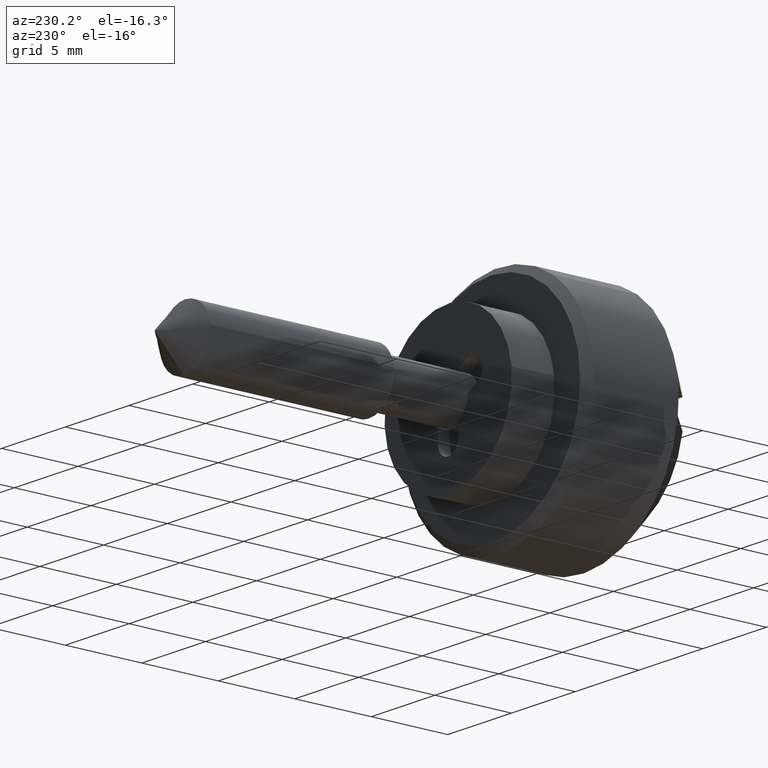
[diagram: clean part render]
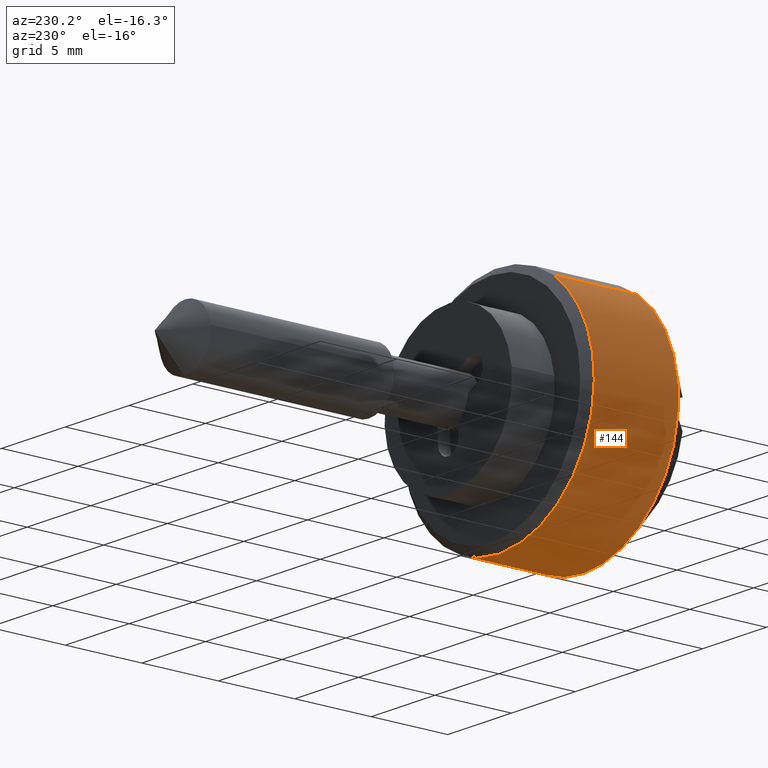
[diagram: same view with one face highlighted and labeled with its STEP entity id]
A machine part, auxiliary view. The second image highlights one B-rep face of the part: STEP entity #144.
In plain terms, the highlighted cylindrical surface (partial cylindrical patch) has radius 7.5 mm, axis along (0, -1, 0).
Its self-contained STEP definition (entity closure, byte-faithful):
#144=ADVANCED_FACE('',(#476),#475,.T.);
#475=CYLINDRICAL_SURFACE('',#727,7.50000000000E+00);
#476=FACE_OUTER_BOUND('',#728,.T.);
#724=CARTESIAN_POINT('',(-9.16239750000E+00,-9.39421562612E-16,-1.42634233970E-16));
#725=DIRECTION('',(-1.00000000000E+00,-8.00379121815E-17,5.57721072830E-17));
#726=DIRECTION('',(-0.00000000000E+00,5.71710610884E-01,8.20455347598E-01));
#727=AXIS2_PLACEMENT_3D('',#724,#725,#726);
#728=EDGE_LOOP('',(#926,#927,#928,#929,#930,#931,#932,#933));
#926=ORIENTED_EDGE('',*,*,#1039,.T.);
#927=ORIENTED_EDGE('',*,*,#1007,.T.);
#928=ORIENTED_EDGE('',*,*,#1036,.T.);
#929=ORIENTED_EDGE('',*,*,#1052,.F.);
#930=ORIENTED_EDGE('',*,*,#1053,.T.);
#931=ORIENTED_EDGE('',*,*,#1054,.T.);
#932=ORIENTED_EDGE('',*,*,#1055,.T.);
#933=ORIENTED_EDGE('',*,*,#1056,.T.);
#1007=EDGE_CURVE('',#1351,#1343,#1352,.T.);
#1036=EDGE_CURVE('',#1343,#1544,#1551,.T.);
#1039=EDGE_CURVE('',#1569,#1351,#1570,.T.);
#1052=EDGE_CURVE('',#1654,#1544,#1655,.T.);
#1053=EDGE_CURVE('',#1654,#1661,#1662,.T.);
#1054=EDGE_CURVE('',#1661,#1668,#1669,.T.);
#1055=EDGE_CURVE('',#1668,#1675,#1676,.T.);
#1056=EDGE_CURVE('',#1675,#1569,#1682,.T.);
#1343=VERTEX_POINT('',#1895);
#1351=VERTEX_POINT('',#1900);
#1352=CIRCLE('',#1904,7.50000000000E+00);
#1544=VERTEX_POINT('',#2034);
#1551=CIRCLE('',#2042,7.50000000000E+00);
#1569=VERTEX_POINT('',#2051);
#1570=CIRCLE('',#2055,7.50000000000E+00);
#1654=VERTEX_POINT('',#2096);
#1655=(BOUNDED_CURVE() B_SPLINE_CURVE(1,(#2097,#2098),.UNSPECIFIED.,.F.,.F.) B_SPLINE_CURVE_WITH_KNOTS((2,2),(8.33333383004E-02,9.16666669188E-01),.UNSPECIFIED.) CURVE() GEOMETRIC_REPRESENTATION_ITEM() RATIONAL_B_SPLINE_CURVE((1.00000000000E+00,1.00000000000E+00)) REPRESENTATION_ITEM('') );
#1661=VERTEX_POINT('',#2099);
#1662=CIRCLE('',#2103,7.50000000001E+00);
#1668=VERTEX_POINT('',#2104);
#1669=CIRCLE('',#2108,7.50000000001E+00);
#1675=VERTEX_POINT('',#2109);
#1676=CIRCLE('',#2113,7.50000000001E+00);
#1682=(BOUNDED_CURVE() B_SPLINE_CURVE(1,(#2114,#2115),.UNSPECIFIED.,.F.,.F.) B_SPLINE_CURVE_WITH_KNOTS((2,2),(8.33333333337E-02,9.16666666667E-01),.UNSPECIFIED.) CURVE() GEOMETRIC_REPRESENTATION_ITEM() RATIONAL_B_SPLINE_CURVE((7.50000000000E-01,7.50000000000E-01)) REPRESENTATION_ITEM('') );
#1895=CARTESIAN_POINT('',(-7.99990000000E+00,7.44580418759E+00,9.00000000000E-01));
#1900=CARTESIAN_POINT('',(-7.99990000000E+00,7.44580418759E+00,-9.00000000000E-01));
#1901=CARTESIAN_POINT('',(-7.99990000000E+00,-1.18660636872E-12,-1.58128064564E-13));
#1902=DIRECTION('',(1.00000000000E+00,1.61651090333E-14,-1.46467440664E-15));
#1903=DIRECTION('',(1.62240591332E-14,-9.92773891679E-01,1.20000000000E-01));
#1904=AXIS2_PLACEMENT_3D('',#1901,#1902,#1903);
#2034=CARTESIAN_POINT('',(-7.99990000000E+00,4.28782960975E+00,6.15341508739E+00));
#2039=CARTESIAN_POINT('',(-7.99990000000E+00,-3.75403085890E-14,3.15917146992E-13));
#2040=DIRECTION('',(1.00000000000E+00,0.00000000000E+00,-0.00000000000E+00));
#2041=DIRECTION('',(0.00000000000E+00,9.92773891679E-01,1.20000000000E-01));
#2042=AXIS2_PLACEMENT_3D('',#2039,#2040,#2041);
#2051=CARTESIAN_POINT('',(-7.99990000000E+00,-4.28788807300E+00,-6.15337434855E+00));
#2052=CARTESIAN_POINT('',(-7.99990000000E+00,-3.75403085890E-14,3.15917146992E-13));
#2053=DIRECTION('',(1.00000000000E+00,0.00000000000E+00,0.00000000000E+00));
#2054=DIRECTION('',(0.00000000000E+00,-0.00000000000E+00,1.00000000000E+00));
#2055=AXIS2_PLACEMENT_3D('',#2052,#2053,#2054);
#2096=CARTESIAN_POINT('',(-2.50000000000E+00,4.28782298770E+00,6.15341970178E+00));
#2097=CARTESIAN_POINT('',(-2.50000003278E+00,4.28782958163E+00,6.15341510699E+00));
#2098=CARTESIAN_POINT('',(-7.99990001664E+00,4.28782958163E+00,6.15341510699E+00));
#2099=CARTESIAN_POINT('',(-2.50000000000E+00,7.49971442792E+00,-6.54484514266E-02));
#2100=CARTESIAN_POINT('',(-2.50000000000E+00,5.00666175185E-12,-6.34914343323E-12));
#2101=DIRECTION('',(-1.00000000000E+00,3.02087850107E-17,1.73093319890E-13));
#2102=DIRECTION('',(-1.73093319890E-13,-6.67452204617E-13,-1.00000000000E+00));
#2103=AXIS2_PLACEMENT_3D('',#2100,#2101,#2102);
#2104=CARTESIAN_POINT('',(-2.50000000000E+00,3.49720252757E-15,-7.50000000001E+00));
#2105=CARTESIAN_POINT('',(-2.50000000000E+00,5.00666175185E-12,-6.34914343323E-12));
#2106=DIRECTION('',(-1.00000000000E+00,3.02087850107E-17,1.73093319890E-13));
#2107=DIRECTION('',(-1.73093319890E-13,-6.67452204617E-13,-1.00000000000E+00));
#2108=AXIS2_PLACEMENT_3D('',#2105,#2106,#2107);
#2109=CARTESIAN_POINT('',(-2.50000000000E+00,-4.28951641780E+00,-6.15223934040E+00));
#2110=CARTESIAN_POINT('',(-2.50000000000E+00,5.00666175185E-12,-6.34914343323E-12));
#2111=DIRECTION('',(-1.00000000000E+00,3.02087850107E-17,1.73093319890E-13));
#2112=DIRECTION('',(-1.73093319890E-13,-6.67452204617E-13,-1.00000000000E+00));
#2113=AXIS2_PLACEMENT_3D('',#2110,#2111,#2112);
#2114=CARTESIAN_POINT('',(-2.50000000000E+00,-4.28782958163E+00,-6.15341510699E+00));
#2115=CARTESIAN_POINT('',(-7.99990000000E+00,-4.28782958163E+00,-6.15341510699E+00));